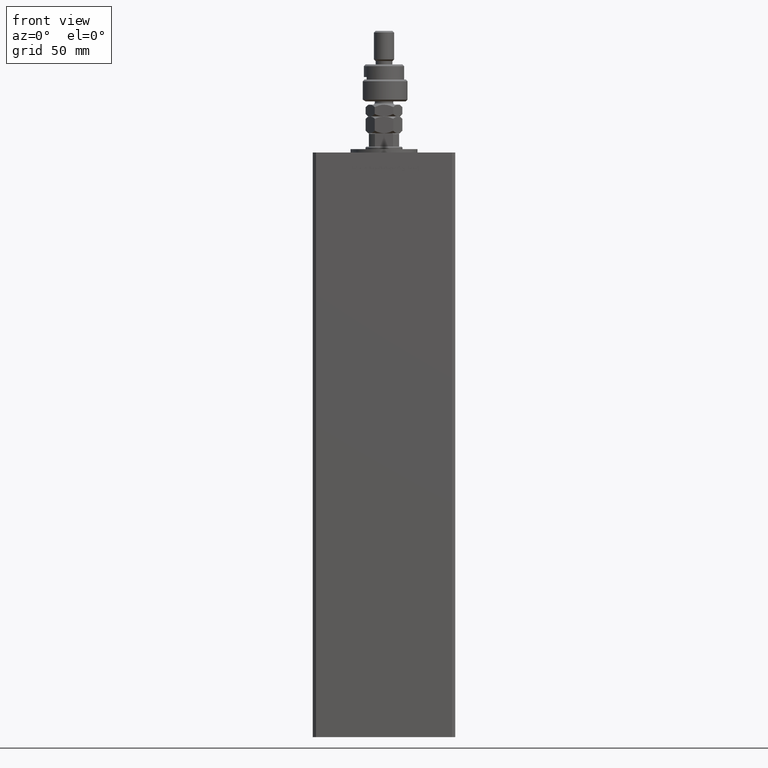
[diagram: clean part render]
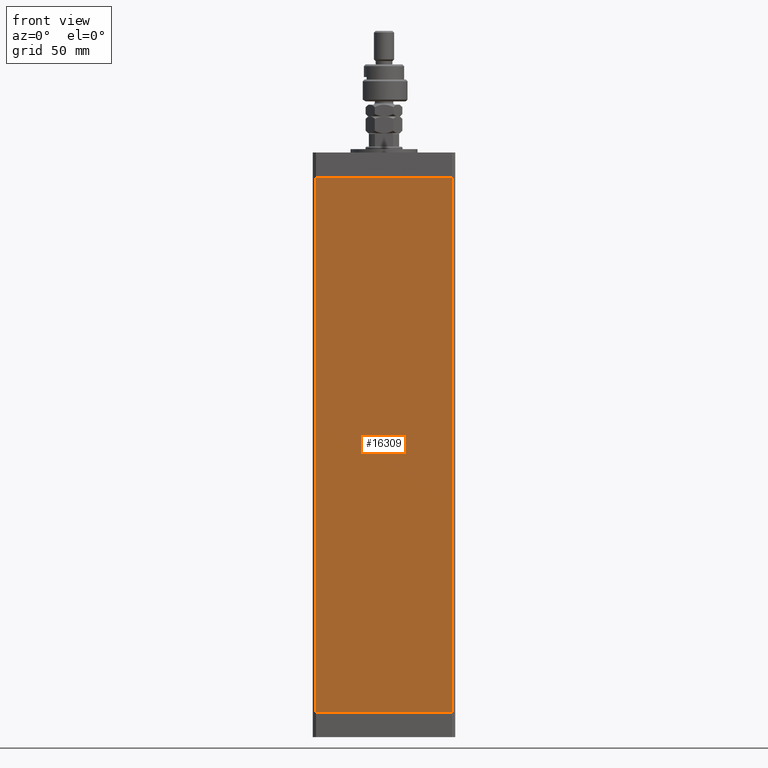
[diagram: same view with one face highlighted and labeled with its STEP entity id]
A machine part, front view. The second image highlights one B-rep face of the part: STEP entity #16309.
In plain terms, the highlighted planar face has unit normal (0, 1, 0).
Its self-contained STEP definition (entity closure, byte-faithful):
#1001 = VECTOR ( 'NONE', #19389, 1000.000000000000000 ) ;
#1291 = CARTESIAN_POINT ( 'NONE',  ( 40.49999999999998579, -37.50000000000000711, 0.000000000000000000 ) ) ;
#1588 = CARTESIAN_POINT ( 'NONE',  ( 40.49999999999998579, -37.50000000000000711, 318.5000000000000000 ) ) ;
#1654 = DIRECTION ( 'NONE',  ( 0.000000000000000000, -0.000000000000000000, 1.000000000000000000 ) ) ;
#1928 = CARTESIAN_POINT ( 'NONE',  ( -40.49999999999998579, -37.50000000000000711, 318.5000000000000000 ) ) ;
#4076 = EDGE_CURVE ( 'NONE', #37502, #5313, #10780, .T. ) ;
#5313 = VERTEX_POINT ( 'NONE', #52665 ) ;
#8203 = VECTOR ( 'NONE', #10839, 1000.000000000000000 ) ;
#10780 = LINE ( 'NONE', #19945, #1001 ) ;
#10839 = DIRECTION ( 'NONE',  ( 1.000000000000000000, 0.000000000000000000, 0.000000000000000000 ) ) ;
#11856 = ORIENTED_EDGE ( 'NONE', *, *, #31350, .F. ) ;
#13863 = CARTESIAN_POINT ( 'NONE',  ( 40.49999999999998579, -37.50000000000000711, 318.5000000000000000 ) ) ;
#15103 = VERTEX_POINT ( 'NONE', #1291 ) ;
#15262 = CARTESIAN_POINT ( 'NONE',  ( -40.49999999999998579, -37.50000000000000711, 0.000000000000000000 ) ) ;
#16309 = ADVANCED_FACE ( 'NONE', ( #39741 ), #30832, .F. ) ;
#17089 = ORIENTED_EDGE ( 'NONE', *, *, #27262, .T. ) ;
#17697 = DIRECTION ( 'NONE',  ( 1.000000000000000000, 0.000000000000000000, 0.000000000000000000 ) ) ;
#18304 = ORIENTED_EDGE ( 'NONE', *, *, #4076, .T. ) ;
#18818 = VECTOR ( 'NONE', #17697, 1000.000000000000000 ) ;
#18871 = DIRECTION ( 'NONE',  ( 0.000000000000000000, 1.000000000000000000, 0.000000000000000000 ) ) ;
#19389 = DIRECTION ( 'NONE',  ( -0.000000000000000000, -0.000000000000000000, -1.000000000000000000 ) ) ;
#19945 = CARTESIAN_POINT ( 'NONE',  ( -40.49999999999998579, -37.50000000000000711, 318.5000000000000000 ) ) ;
#24594 = AXIS2_PLACEMENT_3D ( 'NONE', #1928, #18871, #1654 ) ;
#26697 = EDGE_CURVE ( 'NONE', #37502, #41321, #30204, .T. ) ;
#27262 = EDGE_CURVE ( 'NONE', #5313, #15103, #31952, .T. ) ;
#27963 = LINE ( 'NONE', #1588, #48284 ) ;
#30204 = LINE ( 'NONE', #47190, #18818 ) ;
#30832 = PLANE ( 'NONE',  #24594 ) ;
#31350 = EDGE_CURVE ( 'NONE', #41321, #15103, #27963, .T. ) ;
#31952 = LINE ( 'NONE', #15262, #8203 ) ;
#32749 = CARTESIAN_POINT ( 'NONE',  ( -40.49999999999998579, -37.50000000000000711, 318.5000000000000000 ) ) ;
#36037 = DIRECTION ( 'NONE',  ( -0.000000000000000000, -0.000000000000000000, -1.000000000000000000 ) ) ;
#37474 = ORIENTED_EDGE ( 'NONE', *, *, #26697, .F. ) ;
#37502 = VERTEX_POINT ( 'NONE', #32749 ) ;
#39741 = FACE_OUTER_BOUND ( 'NONE', #45425, .T. ) ;
#41321 = VERTEX_POINT ( 'NONE', #13863 ) ;
#45425 = EDGE_LOOP ( 'NONE', ( #17089, #11856, #37474, #18304 ) ) ;
#47190 = CARTESIAN_POINT ( 'NONE',  ( -40.49999999999998579, -37.50000000000000711, 318.5000000000000000 ) ) ;
#48284 = VECTOR ( 'NONE', #36037, 1000.000000000000000 ) ;
#52665 = CARTESIAN_POINT ( 'NONE',  ( -40.49999999999998579, -37.50000000000000711, 0.000000000000000000 ) ) ;